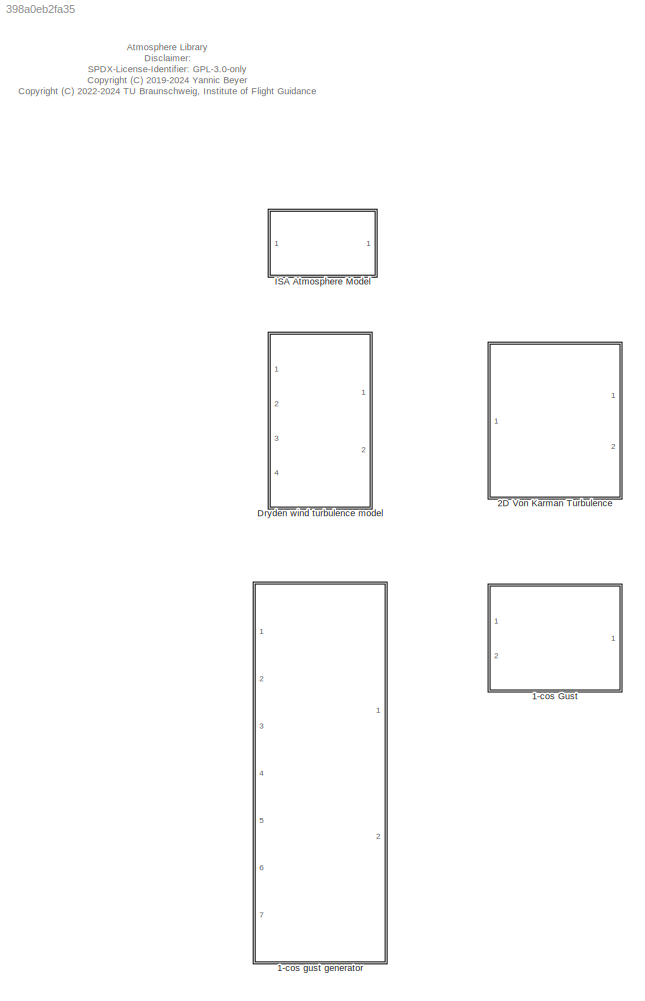
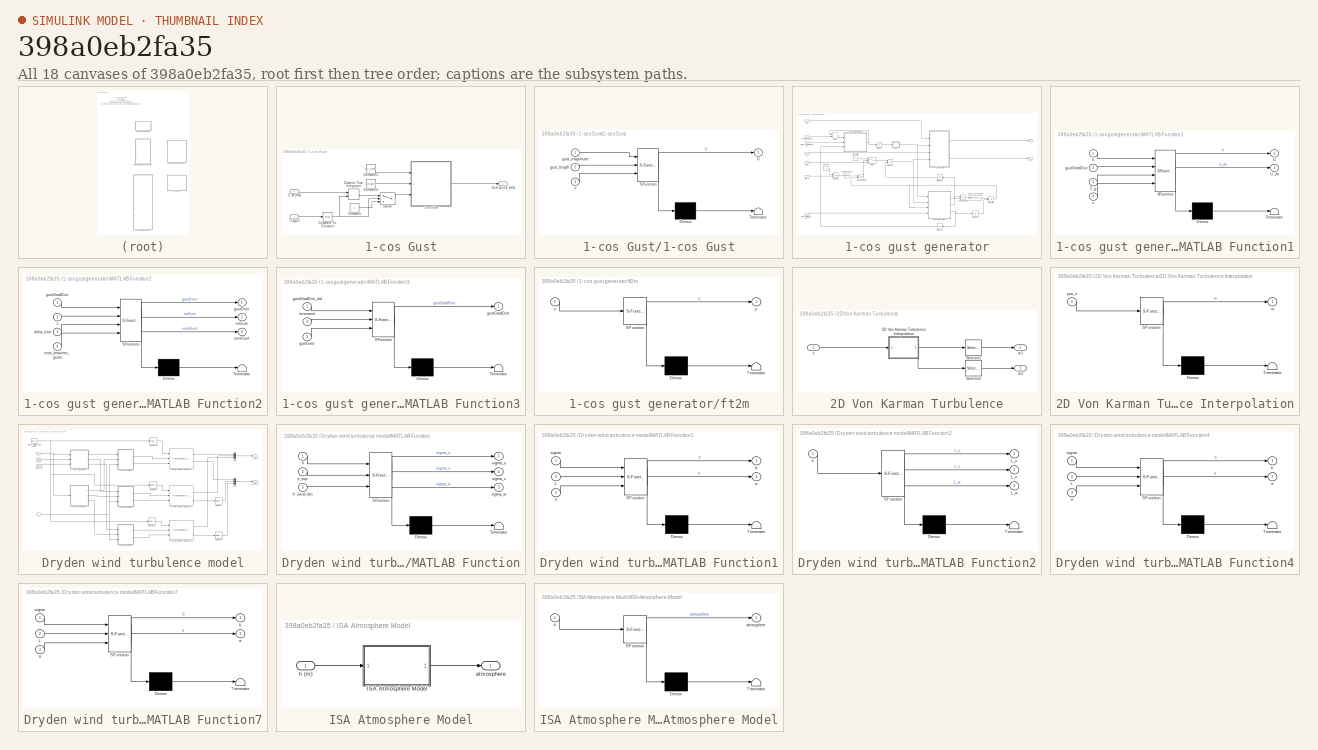
[diagram: thumbnail index - all 18 canvases of the model, root first then tree order]
MODEL slx_398a0eb2fa35
KIND library
CONFIG AbsTol = auto
CONFIG EnableMultiTasking = off
CONFIG FixedStep = auto
CONFIG MaxStep = auto
CONFIG MinStep = auto
CONFIG RelTol = 1e-3
CONFIG SampleTimeConstraint = Unconstrained
CONFIG Solver = VariableStepAuto
CONFIG SolverName = VariableStepAuto
CONFIG StartTime = 0.0
CONFIG StopTime = 10.0
BLOCK [SubSystem] 1-cos Gust
  Ports = [2, 1]
  RequestExecContextInheritance = off
BLOCK [SubSystem] 1-cos Gust/1-cos Gust
  ErrorFcn = Stateflow.Translate.translate
  PermitHierarchicalResolution = ExplicitOnly
  Ports = [3, 1]
  RequestExecContextInheritance = off
  SFBlockType = MATLAB Function
  TreatAsAtomicUnit = on
BLOCK [Demux] 1-cos Gust/1-cos Gust/ Demux 
  Outputs = 1
  Ports = [1, 1]
BLOCK [S-Function] 1-cos Gust/1-cos Gust/ SFunction 
  EnableBusSupport = on
  FunctionName = sf_sfun
  PortCounts = [3 2]
  Ports = [3, 2]
  SFcnIsStateOwnerBlock = off
  SFunctionDeploymentMode = off
  Tag = Stateflow S-Function atmosphere_lib 210
BLOCK [Terminator] 1-cos Gust/1-cos Gust/ Terminator 
BLOCK [Outport] 1-cos Gust/1-cos Gust/U
  IconDisplay = Port number
BLOCK [Inport] 1-cos Gust/1-cos Gust/gust_length
  IconDisplay = Port number
  Port = 2
BLOCK [Inport] 1-cos Gust/1-cos Gust/gust_magnitude
  IconDisplay = Port number
BLOCK [Inport] 1-cos Gust/1-cos Gust/s
  IconDisplay = Port number
  Port = 3
BLOCK [Reference] 1-cos Gust/Compare To Constant  REF=simulink/Logic and Bit
Operations/Compare
To Constant
  Ports = [1, 1]
  SourceBlock = simulink/Logic and Bit\nOperations/Compare\nTo Constant
  SourceProductBaseCode = SL
  SourceProductName = Simulink
  SourceType = Compare To Constant
BLOCK [Constant] 1-cos Gust/Constant
  Value = 0
BLOCK [Constant] 1-cos Gust/Constant1
  Value = gust_magnitude
BLOCK [Constant] 1-cos Gust/Constant2
  Value = gust_length
BLOCK [DiscreteIntegrator] 1-cos Gust/Discrete-Time Integrator
  ExternalReset = rising
  ICPrevOutput = DiscIntNeverNeededParam
  ICPrevScaledInput = DiscIntNeverNeededParam
  InitialConditionSetting = Auto
  Ports = [2, 1]
  SampleTime = -1
BLOCK [Outport] 1-cos Gust/Gust speed (m//s)
  IconDisplay = Port number
BLOCK [Switch] 1-cos Gust/Switch
  Criteria = u2 > Threshold
  InputSameDT = off
  SaturateOnIntegerOverflow = off
BLOCK [Inport] 1-cos Gust/Trigger
  IconDisplay = Port number
  Port = 2
BLOCK [Inport] 1-cos Gust/V_A (m//s)
  IconDisplay = Port number
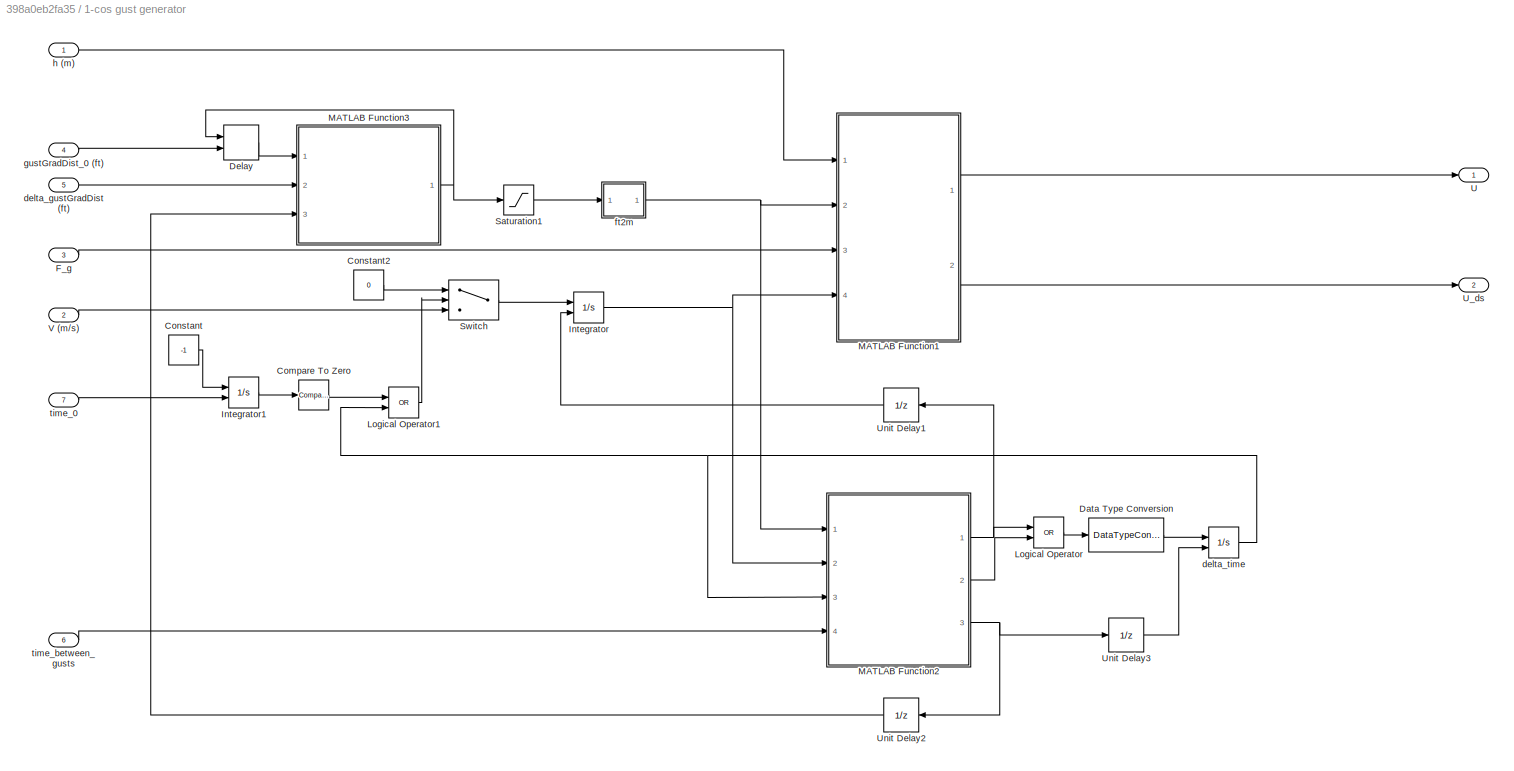
BLOCK [SubSystem] 1-cos gust generator
  Ports = [7, 2]
  RequestExecContextInheritance = off
BLOCK [Reference] 1-cos gust generator/Compare To Zero  REF=simulink/Logic and Bit
Operations/Compare
To Zero
  Ports = [1, 1]
  SourceBlock = simulink/Logic and Bit\nOperations/Compare\nTo Zero
  SourceProductBaseCode = SL
  SourceProductName = Simulink
  SourceType = Compare To Zero
BLOCK [Constant] 1-cos gust generator/Constant
  Value = -1
BLOCK [Constant] 1-cos gust generator/Constant2
  Value = 0
BLOCK [DataTypeConversion] 1-cos gust generator/Data Type Conversion
  OutDataTypeStr = double
  RndMeth = Floor
  SaturateOnIntegerOverflow = off
BLOCK [Delay] 1-cos gust generator/Delay
  DelayLength = 1
  InitialConditionSource = Input port
  InputPortMap = u0,p4
  Ports = [2, 1]
BLOCK [Inport] 1-cos gust generator/F_g
  IconDisplay = Port number
  Port = 3
BLOCK [Integrator] 1-cos gust generator/Integrator
  ExternalReset = rising
  Ports = [2, 1]
BLOCK [Integrator] 1-cos gust generator/Integrator1
  InitialConditionSource = external
  Ports = [2, 1]
BLOCK [Logic] 1-cos gust generator/Logical Operator
  AllPortsSameDT = off
  Operator = OR
  OutDataTypeStr = boolean
  Ports = [2, 1]
BLOCK [Logic] 1-cos gust generator/Logical Operator1
  AllPortsSameDT = off
  Operator = OR
  OutDataTypeStr = boolean
  Ports = [2, 1]
BLOCK [SubSystem] 1-cos gust generator/MATLAB Function1
  ErrorFcn = Stateflow.Translate.translate
  PermitHierarchicalResolution = ExplicitOnly
  Ports = [4, 2]
  RequestExecContextInheritance = off
  SFBlockType = MATLAB Function
  TreatAsAtomicUnit = on
BLOCK [Demux] 1-cos gust generator/MATLAB Function1/ Demux 
  Outputs = 1
  Ports = [1, 1]
BLOCK [S-Function] 1-cos gust generator/MATLAB Function1/ SFunction 
  EnableBusSupport = on
  FunctionName = sf_sfun
  PortCounts = [4 3]
  Ports = [4, 3]
  SFcnIsStateOwnerBlock = off
  SFunctionDeploymentMode = off
  Tag = Stateflow S-Function atmosphere_lib 6
BLOCK [Terminator] 1-cos gust generator/MATLAB Function1/ Terminator 
BLOCK [Inport] 1-cos gust generator/MATLAB Function1/F_g
  IconDisplay = Port number
  Port = 3
BLOCK [Outport] 1-cos gust generator/MATLAB Function1/U
  IconDisplay = Port number
BLOCK [Outport] 1-cos gust generator/MATLAB Function1/U_ds
  IconDisplay = Port number
  Port = 2
BLOCK [Inport] 1-cos gust generator/MATLAB Function1/gustGradDist
  IconDisplay = Port number
  Port = 2
BLOCK [Inport] 1-cos gust generator/MATLAB Function1/h
  IconDisplay = Port number
BLOCK [Inport] 1-cos gust generator/MATLAB Function1/s
  IconDisplay = Port number
  Port = 4
BLOCK [SubSystem] 1-cos gust generator/MATLAB Function2
  ErrorFcn = Stateflow.Translate.translate
  PermitHierarchicalResolution = ExplicitOnly
  Ports = [4, 3]
  RequestExecContextInheritance = off
  SFBlockType = MATLAB Function
  TreatAsAtomicUnit = on
BLOCK [Demux] 1-cos gust generator/MATLAB Function2/ Demux 
  Outputs = 1
  Ports = [1, 1]
BLOCK [S-Function] 1-cos gust generator/MATLAB Function2/ SFunction 
  EnableBusSupport = on
  FunctionName = sf_sfun
  PortCounts = [4 4]
  Ports = [4, 4]
  SFcnIsStateOwnerBlock = off
  SFunctionDeploymentMode = off
  Tag = Stateflow S-Function atmosphere_lib 7
BLOCK [Terminator] 1-cos gust generator/MATLAB Function2/ Terminator 
BLOCK [Inport] 1-cos gust generator/MATLAB Function2/delta_time
  IconDisplay = Port number
  Port = 3
BLOCK [Inport] 1-cos gust generator/MATLAB Function2/gustGradDist
  IconDisplay = Port number
BLOCK [Outport] 1-cos gust generator/MATLAB Function2/gustOver
  IconDisplay = Port number
BLOCK [Outport] 1-cos gust generator/MATLAB Function2/nextGust
  IconDisplay = Port number
  Port = 3
BLOCK [Outport] 1-cos gust generator/MATLAB Function2/noGust
  IconDisplay = Port number
  Port = 2
BLOCK [Inport] 1-cos gust generator/MATLAB Function2/s
  IconDisplay = Port number
  Port = 2
BLOCK [Inport] 1-cos gust generator/MATLAB Function2/time_between_gusts
  IconDisplay = Port number
  Port = 4
BLOCK [SubSystem] 1-cos gust generator/MATLAB Function3
  ErrorFcn = Stateflow.Translate.translate
  PermitHierarchicalResolution = ExplicitOnly
  Ports = [3, 1]
  RequestExecContextInheritance = off
  SFBlockType = MATLAB Function
  TreatAsAtomicUnit = on
BLOCK [Demux] 1-cos gust generator/MATLAB Function3/ Demux 
  Outputs = 1
  Ports = [1, 1]
BLOCK [S-Function] 1-cos gust generator/MATLAB Function3/ SFunction 
  EnableBusSupport = on
  FunctionName = sf_sfun
  PortCounts = [3 2]
  Ports = [3, 2]
  SFcnIsStateOwnerBlock = off
  SFunctionDeploymentMode = off
  Tag = Stateflow S-Function atmosphere_lib 9
BLOCK [Terminator] 1-cos gust generator/MATLAB Function3/ Terminator 
BLOCK [Outport] 1-cos gust generator/MATLAB Function3/gustGradDist
  IconDisplay = Port number
BLOCK [Inport] 1-cos gust generator/MATLAB Function3/gustGradDist_old
  IconDisplay = Port number
BLOCK [Inport] 1-cos gust generator/MATLAB Function3/gustOver
  IconDisplay = Port number
  Port = 3
BLOCK [Inport] 1-cos gust generator/MATLAB Function3/increment
  IconDisplay = Port number
  Port = 2
BLOCK [Saturate] 1-cos gust generator/Saturation1
  InputPortMap = u0
  LowerLimit = 30.1
  Ports = [1, 1]
  UpperLimit = 349.9
BLOCK [Switch] 1-cos gust generator/Switch
  Criteria = u2 > Threshold
  InputSameDT = off
  SaturateOnIntegerOverflow = off
BLOCK [Outport] 1-cos gust generator/U
  IconDisplay = Port number
BLOCK [Outport] 1-cos gust generator/U_ds
  IconDisplay = Port number
  Port = 2
BLOCK [UnitDelay] 1-cos gust generator/Unit Delay1
  InputProcessing = Elements as channels (sample based)
  SampleTime = -1
BLOCK [UnitDelay] 1-cos gust generator/Unit Delay2
  InputProcessing = Elements as channels (sample based)
  SampleTime = -1
BLOCK [UnitDelay] 1-cos gust generator/Unit Delay3
  InputProcessing = Elements as channels (sample based)
  SampleTime = -1
BLOCK [Inport] 1-cos gust generator/V (m//s)
  IconDisplay = Port number
  Port = 2
BLOCK [Inport] 1-cos gust generator/delta_gustGradDist (ft)
  IconDisplay = Port number
  Port = 5
BLOCK [Integrator] 1-cos gust generator/delta_time
  ExternalReset = rising
  Ports = [2, 1]
BLOCK [SubSystem] 1-cos gust generator/ft2m
  ErrorFcn = Stateflow.Translate.translate
  PermitHierarchicalResolution = ExplicitOnly
  Ports = [1, 1]
  RequestExecContextInheritance = off
  SFBlockType = MATLAB Function
  TreatAsAtomicUnit = on
BLOCK [Demux] 1-cos gust generator/ft2m/ Demux 
  Outputs = 1
  Ports = [1, 1]
BLOCK [S-Function] 1-cos gust generator/ft2m/ SFunction 
  EnableBusSupport = on
  FunctionName = sf_sfun
  PortCounts = [1 2]
  Ports = [1, 2]
  SFcnIsStateOwnerBlock = off
  SFunctionDeploymentMode = off
  Tag = Stateflow S-Function atmosphere_lib 10
BLOCK [Terminator] 1-cos gust generator/ft2m/ Terminator 
BLOCK [Inport] 1-cos gust generator/ft2m/u
  IconDisplay = Port number
BLOCK [Outport] 1-cos gust generator/ft2m/y
  IconDisplay = Port number
BLOCK [Inport] 1-cos gust generator/gustGradDist_0 (ft)
  IconDisplay = Port number
  Port = 4
BLOCK [Inport] 1-cos gust generator/h (m)
  IconDisplay = Port number
BLOCK [Inport] 1-cos gust generator/time_0
  IconDisplay = Port number
  Port = 7
BLOCK [Inport] 1-cos gust generator/time_between_gusts
  IconDisplay = Port number
  Port = 6
BLOCK [SubSystem] 2D Von Karman Turbulence
  Ports = [1, 2]
  RequestExecContextInheritance = off
BLOCK [SubSystem] 2D Von Karman Turbulence/2D Von Karman Turbulence Interpolation
  ErrorFcn = Stateflow.Translate.translate
  PermitHierarchicalResolution = ExplicitOnly
  Ports = [1, 1]
  RequestExecContextInheritance = off
  SFBlockType = MATLAB Function
  TreatAsAtomicUnit = on
BLOCK [Demux] 2D Von Karman Turbulence/2D Von Karman Turbulence Interpolation/ Demux 
  Outputs = 1
  Ports = [1, 1]
BLOCK [S-Function] 2D Von Karman Turbulence/2D Von Karman Turbulence Interpolation/ SFunction 
  EnableBusSupport = on
  FunctionName = sf_sfun
  Parameters = wg,x
  PortCounts = [1 2]
  Ports = [1, 2]
  SFcnIsStateOwnerBlock = off
  SFunctionDeploymentMode = off
  Tag = Stateflow S-Function atmosphere_lib 32
BLOCK [Terminator] 2D Von Karman Turbulence/2D Von Karman Turbulence Interpolation/ Terminator 
BLOCK [Inport] 2D Von Karman Turbulence/2D Von Karman Turbulence Interpolation/pos_x
  IconDisplay = Port number
BLOCK [Outport] 2D Von Karman Turbulence/2D Von Karman Turbulence Interpolation/w
  IconDisplay = Port number
BLOCK [Selector] 2D Von Karman Turbulence/Selector1
  IndexOptions = Index vector (dialog)
  Indices = 1:5
  InputPortWidth = 10
  OutputSizes = 1
  Ports = [1, 1]
BLOCK [Selector] 2D Von Karman Turbulence/Selector2
  IndexOptions = Index vector (dialog)
  Indices = 6:10
  InputPortWidth = 10
  OutputSizes = 1
  Ports = [1, 1]
BLOCK [Outport] 2D Von Karman Turbulence/w1
  IconDisplay = Port number
BLOCK [Outport] 2D Von Karman Turbulence/w2
  IconDisplay = Port number
  Port = 2
BLOCK [Inport] 2D Von Karman Turbulence/x
  IconDisplay = Port number
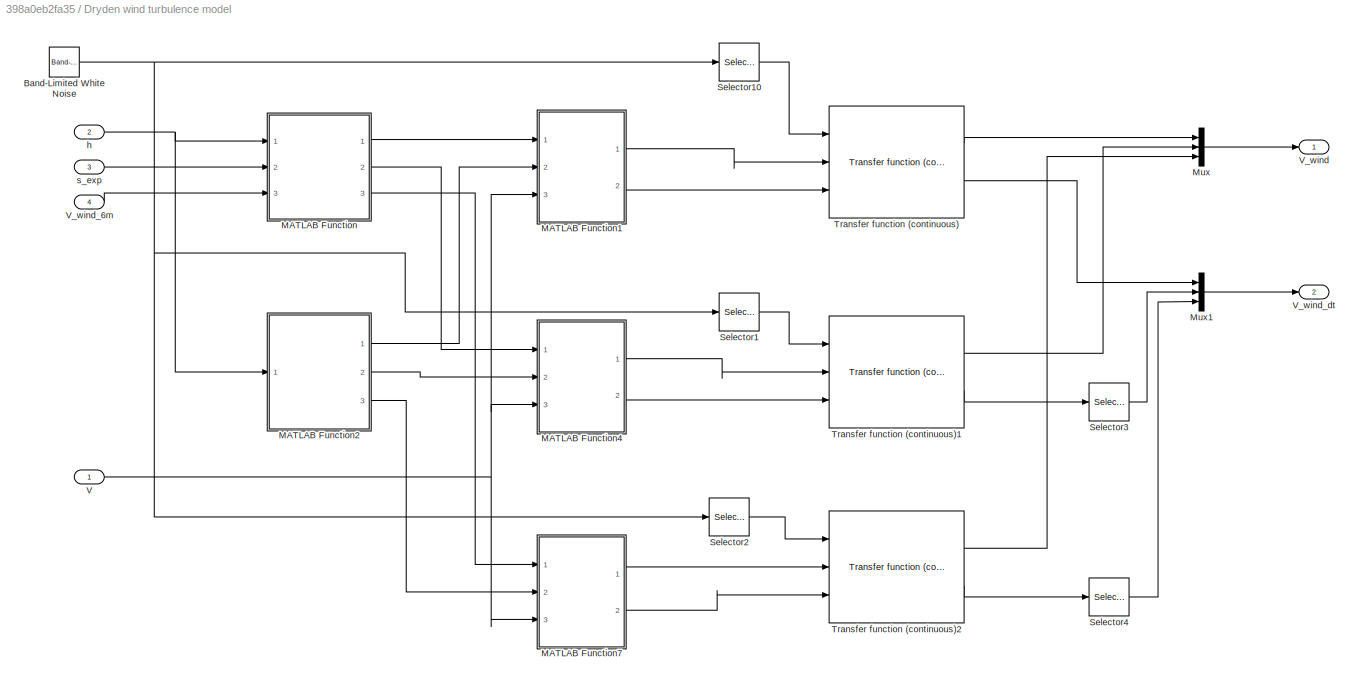
BLOCK [SubSystem] Dryden wind turbulence model
  Ports = [4, 2]
  RequestExecContextInheritance = off
BLOCK [Reference] Dryden wind turbulence model/Band-Limited White Noise  REF=simulink/Sources/Band-Limited
White Noise
  Ports = [0, 1]
  SourceBlock = simulink/Sources/Band-Limited\nWhite Noise
  SourceProductBaseCode = SL
  SourceProductName = Simulink
  SourceType = Band-Limited White Noise.
BLOCK [SubSystem] Dryden wind turbulence model/MATLAB Function
  ErrorFcn = Stateflow.Translate.translate
  PermitHierarchicalResolution = ExplicitOnly
  Ports = [3, 3]
  RequestExecContextInheritance = off
  SFBlockType = MATLAB Function
  TreatAsAtomicUnit = on
BLOCK [Demux] Dryden wind turbulence model/MATLAB Function/ Demux 
  Outputs = 1
  Ports = [1, 1]
BLOCK [S-Function] Dryden wind turbulence model/MATLAB Function/ SFunction 
  EnableBusSupport = off
  FunctionName = sf_sfun
  PortCounts = [3 4]
  Ports = [3, 4]
  SFcnIsStateOwnerBlock = off
  SFunctionDeploymentMode = off
  Tag = Stateflow S-Function atmosphere_lib 3
BLOCK [Terminator] Dryden wind turbulence model/MATLAB Function/ Terminator 
BLOCK [Inport] Dryden wind turbulence model/MATLAB Function/V_wind_6m
  IconDisplay = Port number
  Port = 3
BLOCK [Inport] Dryden wind turbulence model/MATLAB Function/h
  IconDisplay = Port number
BLOCK [Inport] Dryden wind turbulence model/MATLAB Function/s_exp
  IconDisplay = Port number
  Port = 2
BLOCK [Outport] Dryden wind turbulence model/MATLAB Function/sigma_u
  IconDisplay = Port number
BLOCK [Outport] Dryden wind turbulence model/MATLAB Function/sigma_v
  IconDisplay = Port number
  Port = 2
BLOCK [Outport] Dryden wind turbulence model/MATLAB Function/sigma_w
  IconDisplay = Port number
  Port = 3
BLOCK [SubSystem] Dryden wind turbulence model/MATLAB Function1
  ErrorFcn = Stateflow.Translate.translate
  PermitHierarchicalResolution = ExplicitOnly
  Ports = [3, 2]
  RequestExecContextInheritance = off
  SFBlockType = MATLAB Function
  TreatAsAtomicUnit = on
BLOCK [Demux] Dryden wind turbulence model/MATLAB Function1/ Demux 
  Outputs = 1
  Ports = [1, 1]
BLOCK [S-Function] Dryden wind turbulence model/MATLAB Function1/ SFunction 
  EnableBusSupport = on
  FunctionName = sf_sfun
  PortCounts = [3 3]
  Ports = [3, 3]
  SFcnIsStateOwnerBlock = off
  SFunctionDeploymentMode = off
  Tag = Stateflow S-Function atmosphere_lib 1
BLOCK [Terminator] Dryden wind turbulence model/MATLAB Function1/ Terminator 
BLOCK [Inport] Dryden wind turbulence model/MATLAB Function1/L
  IconDisplay = Port number
  Port = 2
BLOCK [Inport] Dryden wind turbulence model/MATLAB Function1/V
  IconDisplay = Port number
  Port = 3
BLOCK [Outport] Dryden wind turbulence model/MATLAB Function1/a
  IconDisplay = Port number
  Port = 2
BLOCK [Outport] Dryden wind turbulence model/MATLAB Function1/b
  IconDisplay = Port number
BLOCK [Inport] Dryden wind turbulence model/MATLAB Function1/sigma
  IconDisplay = Port number
BLOCK [SubSystem] Dryden wind turbulence model/MATLAB Function2
  ErrorFcn = Stateflow.Translate.translate
  PermitHierarchicalResolution = ExplicitOnly
  Ports = [1, 3]
  RequestExecContextInheritance = off
  SFBlockType = MATLAB Function
  TreatAsAtomicUnit = on
BLOCK [Demux] Dryden wind turbulence model/MATLAB Function2/ Demux 
  Outputs = 1
  Ports = [1, 1]
BLOCK [S-Function] Dryden wind turbulence model/MATLAB Function2/ SFunction 
  EnableBusSupport = off
  FunctionName = sf_sfun
  PortCounts = [1 4]
  Ports = [1, 4]
  SFcnIsStateOwnerBlock = off
  SFunctionDeploymentMode = off
  Tag = Stateflow S-Function atmosphere_lib 4
BLOCK [Terminator] Dryden wind turbulence model/MATLAB Function2/ Terminator 
BLOCK [Outport] Dryden wind turbulence model/MATLAB Function2/L_u
  IconDisplay = Port number
BLOCK [Outport] Dryden wind turbulence model/MATLAB Function2/L_v
  IconDisplay = Port number
  Port = 2
BLOCK [Outport] Dryden wind turbulence model/MATLAB Function2/L_w
  IconDisplay = Port number
  Port = 3
BLOCK [Inport] Dryden wind turbulence model/MATLAB Function2/h
  IconDisplay = Port number
BLOCK [SubSystem] Dryden wind turbulence model/MATLAB Function4
  ErrorFcn = Stateflow.Translate.translate
  PermitHierarchicalResolution = ExplicitOnly
  Ports = [3, 2]
  RequestExecContextInheritance = off
  SFBlockType = MATLAB Function
  TreatAsAtomicUnit = on
BLOCK [Demux] Dryden wind turbulence model/MATLAB Function4/ Demux 
  Outputs = 1
  Ports = [1, 1]
BLOCK [S-Function] Dryden wind turbulence model/MATLAB Function4/ SFunction 
  EnableBusSupport = on
  FunctionName = sf_sfun
  PortCounts = [3 3]
  Ports = [3, 3]
  SFcnIsStateOwnerBlock = off
  SFunctionDeploymentMode = off
  Tag = Stateflow S-Function atmosphere_lib 5
BLOCK [Terminator] Dryden wind turbulence model/MATLAB Function4/ Terminator 
BLOCK [Inport] Dryden wind turbulence model/MATLAB Function4/L
  IconDisplay = Port number
  Port = 2
BLOCK [Inport] Dryden wind turbulence model/MATLAB Function4/V
  IconDisplay = Port number
  Port = 3
BLOCK [Outport] Dryden wind turbulence model/MATLAB Function4/a
  IconDisplay = Port number
  Port = 2
BLOCK [Outport] Dryden wind turbulence model/MATLAB Function4/b
  IconDisplay = Port number
BLOCK [Inport] Dryden wind turbulence model/MATLAB Function4/sigma
  IconDisplay = Port number
BLOCK [SubSystem] Dryden wind turbulence model/MATLAB Function7
  ErrorFcn = Stateflow.Translate.translate
  PermitHierarchicalResolution = ExplicitOnly
  Ports = [3, 2]
  RequestExecContextInheritance = off
  SFBlockType = MATLAB Function
  TreatAsAtomicUnit = on
BLOCK [Demux] Dryden wind turbulence model/MATLAB Function7/ Demux 
  Outputs = 1
  Ports = [1, 1]
BLOCK [S-Function] Dryden wind turbulence model/MATLAB Function7/ SFunction 
  EnableBusSupport = on
  FunctionName = sf_sfun
  PortCounts = [3 3]
  Ports = [3, 3]
  SFcnIsStateOwnerBlock = off
  SFunctionDeploymentMode = off
  Tag = Stateflow S-Function atmosphere_lib 8
BLOCK [Terminator] Dryden wind turbulence model/MATLAB Function7/ Terminator 
BLOCK [Inport] Dryden wind turbulence model/MATLAB Function7/L
  IconDisplay = Port number
  Port = 2
BLOCK [Inport] Dryden wind turbulence model/MATLAB Function7/V
  IconDisplay = Port number
  Port = 3
BLOCK [Outport] Dryden wind turbulence model/MATLAB Function7/a
  IconDisplay = Port number
  Port = 2
BLOCK [Outport] Dryden wind turbulence model/MATLAB Function7/b
  IconDisplay = Port number
BLOCK [Inport] Dryden wind turbulence model/MATLAB Function7/sigma
  IconDisplay = Port number
BLOCK [Mux] Dryden wind turbulence model/Mux
  DisplayOption = bar
  Inputs = 3
  Ports = [3, 1]
BLOCK [Mux] Dryden wind turbulence model/Mux1
  DisplayOption = bar
  Inputs = 3
  Ports = [3, 1]
BLOCK [Selector] Dryden wind turbulence model/Selector1
  IndexOptions = Index vector (dialog)
  Indices = 2
  InputPortWidth = 3
  OutputSizes = 1
  Ports = [1, 1]
BLOCK [Selector] Dryden wind turbulence model/Selector10
  IndexOptions = Index vector (dialog)
  Indices = 1
  InputPortWidth = 3
  OutputSizes = 1
  Ports = [1, 1]
BLOCK [Selector] Dryden wind turbulence model/Selector2
  IndexOptions = Index vector (dialog)
  Indices = 3
  InputPortWidth = 3
  OutputSizes = 1
  Ports = [1, 1]
BLOCK [Selector] Dryden wind turbulence model/Selector3
  IndexOptions = Index vector (dialog)
  Indices = 2
  InputPortWidth = 2
  OutputSizes = 1
  Ports = [1, 1]
BLOCK [Selector] Dryden wind turbulence model/Selector4
  IndexOptions = Index vector (dialog)
  Indices = 2
  InputPortWidth = 2
  OutputSizes = 1
  Ports = [1, 1]
BLOCK [Reference] Dryden wind turbulence model/Transfer function (continuous)  REF=linear_systems_lib/Transfer function (continuous)  (lib defined in slx_6d7ae23f43cd)
  Ports = [3, 2]
  SourceBlock = linear_systems_lib/Transfer function (continuous)
  SourceProductName = LADAC
BLOCK [Reference] Dryden wind turbulence model/Transfer function (continuous)1  REF=linear_systems_lib/Transfer function (continuous)  (lib defined in slx_6d7ae23f43cd)
  Ports = [3, 2]
  SourceBlock = linear_systems_lib/Transfer function (continuous)
  SourceProductName = LADAC
BLOCK [Reference] Dryden wind turbulence model/Transfer function (continuous)2  REF=linear_systems_lib/Transfer function (continuous)  (lib defined in slx_6d7ae23f43cd)
  Ports = [3, 2]
  SourceBlock = linear_systems_lib/Transfer function (continuous)
  SourceProductName = LADAC
BLOCK [Inport] Dryden wind turbulence model/V
  IconDisplay = Port number
BLOCK [Outport] Dryden wind turbulence model/V_wind
  IconDisplay = Port number
BLOCK [Inport] Dryden wind turbulence model/V_wind_6m
  IconDisplay = Port number
  Port = 4
BLOCK [Outport] Dryden wind turbulence model/V_wind_dt
  IconDisplay = Port number
  Port = 2
BLOCK [Inport] Dryden wind turbulence model/h
  IconDisplay = Port number
  Port = 2
BLOCK [Inport] Dryden wind turbulence model/s_exp
  IconDisplay = Port number
  Port = 3
BLOCK [SubSystem] ISA Atmosphere Model
  Ports = [1, 1]
  RequestExecContextInheritance = off
BLOCK [SubSystem] ISA Atmosphere Model/ISA Atmosphere Model
  ErrorFcn = Stateflow.Translate.translate
  PermitHierarchicalResolution = ExplicitOnly
  Ports = [1, 1]
  RequestExecContextInheritance = off
  SFBlockType = MATLAB Function
  TreatAsAtomicUnit = on
BLOCK [Demux] ISA Atmosphere Model/ISA Atmosphere Model/ Demux 
  Outputs = 1
  Ports = [1, 1]
BLOCK [S-Function] ISA Atmosphere Model/ISA Atmosphere Model/ SFunction 
  EnableBusSupport = off
  FunctionName = sf_sfun
  PortCounts = [1 2]
  Ports = [1, 2]
  SFcnIsStateOwnerBlock = off
  SFunctionDeploymentMode = off
  Tag = Stateflow S-Function atmosphere_lib 2
BLOCK [Terminator] ISA Atmosphere Model/ISA Atmosphere Model/ Terminator 
BLOCK [Outport] ISA Atmosphere Model/ISA Atmosphere Model/atmosphere
  IconDisplay = Port number
BLOCK [Inport] ISA Atmosphere Model/ISA Atmosphere Model/h
  IconDisplay = Port number
BLOCK [Outport] ISA Atmosphere Model/atmosphere
  IconDisplay = Port number
BLOCK [Inport] ISA Atmosphere Model/h (m)
  IconDisplay = Port number
ANNOTATION (root): Atmosphere Library Disclaimer: SPDX-License-Identifier: GPL-3.0-only <copyright redacted>
LINE 1-cos Gust/1-cos Gust:1 -> 1-cos Gust/Gust speed (m//s):1
NET 1-cos Gust/Compare To Constant:1 -> 1-cos Gust/Discrete-Time Integrator:2, 1-cos Gust/Switch:2
LINE 1-cos Gust/Constant1:1 -> 1-cos Gust/1-cos Gust:1
LINE 1-cos Gust/Constant2:1 -> 1-cos Gust/1-cos Gust:2
LINE 1-cos Gust/Constant:1 -> 1-cos Gust/Switch:3
LINE 1-cos Gust/Discrete-Time Integrator:1 -> 1-cos Gust/Switch:1
LINE 1-cos Gust/Switch:1 -> 1-cos Gust/1-cos Gust:3
LINE 1-cos Gust/Trigger:1 -> 1-cos Gust/Compare To Constant:1
LINE 1-cos Gust/V_A (m//s):1 -> 1-cos Gust/Discrete-Time Integrator:1
LINE 1-cos gust generator/Compare To Zero:1 -> 1-cos gust generator/Logical Operator1:1
LINE 1-cos gust generator/Constant2:1 -> 1-cos gust generator/Switch:1
LINE 1-cos gust generator/Constant:1 -> 1-cos gust generator/Integrator1:1
LINE 1-cos gust generator/Data Type Conversion:1 -> 1-cos gust generator/delta_time:1
LINE 1-cos gust generator/Delay:1 -> 1-cos gust generator/MATLAB Function3:1
LINE 1-cos gust generator/F_g:1 -> 1-cos gust generator/MATLAB Function1:3
LINE 1-cos gust generator/Integrator1:1 -> 1-cos gust generator/Compare To Zero:1
NET 1-cos gust generator/Integrator:1 -> 1-cos gust generator/MATLAB Function1:4, 1-cos gust generator/MATLAB Function2:2
LINE 1-cos gust generator/Logical Operator1:1 -> 1-cos gust generator/Switch:2
LINE 1-cos gust generator/Logical Operator:1 -> 1-cos gust generator/Data Type Conversion:1
LINE 1-cos gust generator/MATLAB Function1:1 -> 1-cos gust generator/U:1
LINE 1-cos gust generator/MATLAB Function1:2 -> 1-cos gust generator/U_ds:1
NET 1-cos gust generator/MATLAB Function2:1 -> 1-cos gust generator/Logical Operator:1, 1-cos gust generator/Unit Delay1:1
LINE 1-cos gust generator/MATLAB Function2:2 -> 1-cos gust generator/Logical Operator:2
NET 1-cos gust generator/MATLAB Function2:3 -> 1-cos gust generator/Unit Delay2:1, 1-cos gust generator/Unit Delay3:1
NET 1-cos gust generator/MATLAB Function3:1 -> 1-cos gust generator/Delay:1, 1-cos gust generator/Saturation1:1
LINE 1-cos gust generator/Saturation1:1 -> 1-cos gust generator/ft2m:1
LINE 1-cos gust generator/Switch:1 -> 1-cos gust generator/Integrator:1
LINE 1-cos gust generator/Unit Delay1:1 -> 1-cos gust generator/Integrator:2
LINE 1-cos gust generator/Unit Delay2:1 -> 1-cos gust generator/MATLAB Function3:3
LINE 1-cos gust generator/Unit Delay3:1 -> 1-cos gust generator/delta_time:2
LINE 1-cos gust generator/V (m//s):1 -> 1-cos gust generator/Switch:3
LINE 1-cos gust generator/delta_gustGradDist (ft):1 -> 1-cos gust generator/MATLAB Function3:2
NET 1-cos gust generator/delta_time:1 -> 1-cos gust generator/Logical Operator1:2, 1-cos gust generator/MATLAB Function2:3
NET 1-cos gust generator/ft2m:1 -> 1-cos gust generator/MATLAB Function1:2, 1-cos gust generator/MATLAB Function2:1
LINE 1-cos gust generator/gustGradDist_0 (ft):1 -> 1-cos gust generator/Delay:2
LINE 1-cos gust generator/h (m):1 -> 1-cos gust generator/MATLAB Function1:1
LINE 1-cos gust generator/time_0:1 -> 1-cos gust generator/Integrator1:2
LINE 1-cos gust generator/time_between_gusts:1 -> 1-cos gust generator/MATLAB Function2:4
NET Dryden wind turbulence model/Band-Limited White Noise:1 -> Dryden wind turbulence model/Selector10:1, Dryden wind turbulence model/Selector1:1, Dryden wind turbulence model/Selector2:1
LINE Dryden wind turbulence model/MATLAB Function1:1 -> Dryden wind turbulence model/Transfer function (continuous):2
LINE Dryden wind turbulence model/MATLAB Function1:2 -> Dryden wind turbulence model/Transfer function (continuous):3
LINE Dryden wind turbulence model/MATLAB Function2:1 -> Dryden wind turbulence model/MATLAB Function1:2
LINE Dryden wind turbulence model/MATLAB Function2:2 -> Dryden wind turbulence model/MATLAB Function4:2
LINE Dryden wind turbulence model/MATLAB Function2:3 -> Dryden wind turbulence model/MATLAB Function7:2
LINE Dryden wind turbulence model/MATLAB Function4:1 -> Dryden wind turbulence model/Transfer function (continuous)1:2
LINE Dryden wind turbulence model/MATLAB Function4:2 -> Dryden wind turbulence model/Transfer function (continuous)1:3
LINE Dryden wind turbulence model/MATLAB Function7:1 -> Dryden wind turbulence model/Transfer function (continuous)2:2
LINE Dryden wind turbulence model/MATLAB Function7:2 -> Dryden wind turbulence model/Transfer function (continuous)2:3
LINE Dryden wind turbulence model/MATLAB Function:1 -> Dryden wind turbulence model/MATLAB Function1:1
LINE Dryden wind turbulence model/MATLAB Function:2 -> Dryden wind turbulence model/MATLAB Function4:1
LINE Dryden wind turbulence model/MATLAB Function:3 -> Dryden wind turbulence model/MATLAB Function7:1
LINE Dryden wind turbulence model/Mux1:1 -> Dryden wind turbulence model/V_wind_dt:1
LINE Dryden wind turbulence model/Mux:1 -> Dryden wind turbulence model/V_wind:1
LINE Dryden wind turbulence model/Selector10:1 -> Dryden wind turbulence model/Transfer function (continuous):1
LINE Dryden wind turbulence model/Selector1:1 -> Dryden wind turbulence model/Transfer function (continuous)1:1
LINE Dryden wind turbulence model/Selector2:1 -> Dryden wind turbulence model/Transfer function (continuous)2:1
LINE Dryden wind turbulence model/Selector3:1 -> Dryden wind turbulence model/Mux1:2
LINE Dryden wind turbulence model/Selector4:1 -> Dryden wind turbulence model/Mux1:3
LINE Dryden wind turbulence model/Transfer function (continuous)1:1 -> Dryden wind turbulence model/Mux:2
LINE Dryden wind turbulence model/Transfer function (continuous)1:2 -> Dryden wind turbulence model/Selector3:1
LINE Dryden wind turbulence model/Transfer function (continuous)2:1 -> Dryden wind turbulence model/Mux:3
LINE Dryden wind turbulence model/Transfer function (continuous)2:2 -> Dryden wind turbulence model/Selector4:1
LINE Dryden wind turbulence model/Transfer function (continuous):1 -> Dryden wind turbulence model/Mux:1
LINE Dryden wind turbulence model/Transfer function (continuous):2 -> Dryden wind turbulence model/Mux1:1
NET Dryden wind turbulence model/V:1 -> Dryden wind turbulence model/MATLAB Function1:3, Dryden wind turbulence model/MATLAB Function4:3, Dryden wind turbulence model/MATLAB Function7:3
LINE Dryden wind turbulence model/V_wind_6m:1 -> Dryden wind turbulence model/MATLAB Function:3
NET Dryden wind turbulence model/h:1 -> Dryden wind turbulence model/MATLAB Function2:1, Dryden wind turbulence model/MATLAB Function:1
LINE Dryden wind turbulence model/s_exp:1 -> Dryden wind turbulence model/MATLAB Function:2
LINE ISA Atmosphere Model/ISA Atmosphere Model:1 -> ISA Atmosphere Model/atmosphere:1
LINE ISA Atmosphere Model/h (m):1 -> ISA Atmosphere Model/ISA Atmosphere Model:1
note: NET lines group one-source signal fan-out (src -> all destinations, sorted); 1:1 wires keep LINE
CHART Dryden wind turbulence model/MATLAB Function1 states=1 transitions=1
  STATE_LABEL 'eML_blk_kernel()'
  STATE_LABEL "SCRIPT:\nfunction [b,a] = drydenTf( sigma, L, V ) %#codegen\n[b,a] = drydenTf( sigma, L, V, 'u' );\nend"
CHART ISA Atmosphere Model/ISA Atmosphere Model states=1 transitions=1
  STATE_LABEL 'eML_blk_kernel()'
  STATE_LABEL 'SCRIPT:\nfunction atmosphere = isAtmosphere( h ) %#codegen\natmosphere = isAtmosphere( h );\nend'
CHART Dryden wind turbulence model/MATLAB Function states=1 transitions=1
  STATE_LABEL 'eML_blk_kernel()'
  STATE_LABEL 'SCRIPT:\nfunction [ sigma_u, sigma_v, sigma_w ] = fcn( h, s_exp, V_wind_6m ) %#codegen\n[ sigma_u, sigma_v, sigma_w ] = turbulenceIntensityRMS( h, s_exp, V_wind_6m );\nend'
CHART Dryden wind turbulence model/MATLAB Function2 states=1 transitions=1
  STATE_LABEL 'eML_blk_kernel()'
  STATE_LABEL 'SCRIPT:\nfunction [ L_u, L_v, L_w ] = fcn( h ) %#codegen\n[ L_u, L_v, L_w ] = turbulenceScaleLength( h );\nend'
CHART Dryden wind turbulence model/MATLAB Function4 states=1 transitions=1
  STATE_LABEL 'eML_blk_kernel()'
  STATE_LABEL "SCRIPT:\nfunction [b,a] = drydenTf( sigma, L, V ) %#codegen\n[b,a] = drydenTf( sigma, L, V, 'v' );\nend"
CHART 1-cos gust generator/MATLAB Function1 states=1 transitions=1
  STATE_LABEL 'eML_blk_kernel()'
  STATE_LABEL 'SCRIPT:\nfunction [U,U_ds] = fcn(h,gustGradDist,F_g,s)\n\n% define 1-cos gust\nU_ref           = oneMinusCosGustUref( h );\nU_ds            = oneMinusCosGustUds( U_ref, gustGradDist, F_g );\nU               = U_ds/2 * ( 1 - cos( pi*s/gustGradDist ) );\n\nend'
CHART 1-cos gust generator/MATLAB Function2 states=1 transitions=1
  STATE_LABEL 'eML_blk_kernel()'
  STATE_LABEL 'SCRIPT:\nfunction [ gustOver, noGust, nextGust ] = fcn(gustGradDist, s, delta_time,time_between_gusts) %#codegen\n\nif s >= 2*gustGradDist\n    gustOver = 1;\nelse\n    gustOver = 0;\nend\n\nif  delta_time > 0 && delta_time < time_between_gusts\n    noGust = 1;\nelse\n    noGust = 0;\nend\n\nif delta_time >= time_between_gusts\n    nextGust = 1;\nelse\n    nextGust = 0;\nend\n\nend'
CHART Dryden wind turbulence model/MATLAB Function7 states=1 transitions=1
  STATE_LABEL 'eML_blk_kernel()'
  STATE_LABEL "SCRIPT:\nfunction [b,a] = drydenTf( sigma, L, V ) %#codegen\n[b,a] = drydenTf( sigma, L, V, 'w' );\nend"
CHART 1-cos gust generator/MATLAB Function3 states=1 transitions=1
  STATE_LABEL 'eML_blk_kernel()'
  STATE_LABEL 'SCRIPT:\nfunction gustGradDist = fcn( gustGradDist_old, increment, gustOver ) %#codegen\n\nif gustOver\n    gustGradDist = gustGradDist_old + increment;\nelse\n    gustGradDist = gustGradDist_old;\nend'
CHART 1-cos gust generator/ft2m states=1 transitions=1
  STATE_LABEL 'eML_blk_kernel()'
  STATE_LABEL 'SCRIPT:\nfunction y = fcn(u)\ny = ft2m(u);'
CHART 2D Von Karman Turbulence/2D Von Karman Turbulence Interpolation states=1 transitions=1
  STATE_LABEL 'eML_blk_kernel()'
  STATE_LABEL 'SCRIPT:\nfunction w = fcn(pos_x,wg, x)\nw = zeros(size(wg,2),1);\nif pos_x<x(end)\n    w(:) = interp1(x(:),wg,pos_x);\n    w(isnan(w))=0;\nend\nend'
CHART 1-cos Gust/1-cos Gust states=1 transitions=1
  STATE_LABEL 'eML_blk_kernel()'
  STATE_LABEL 'SCRIPT:\nfunction U = fcn(gust_magnitude,gust_length,s)\nU = zeros(1,class(s));\ncos_arg = 2*pi*s/gust_length;\nif cos_arg > 0 && cos_arg <= 2*pi\n    U(:) = gust_magnitude/2 * ( 1 - cos( cos_arg ) );\nend\nend'
